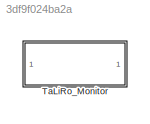
MODEL slx_3df9f024ba2a
KIND library
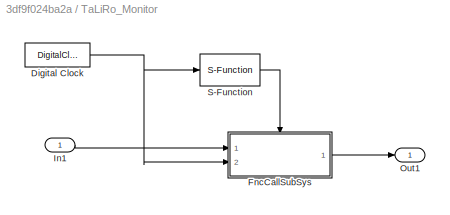
BLOCK [SubSystem] TaLiRo_Monitor
  FunctionWithSeparateData = off
  MaskHideContents = off
  MinAlgLoopOccurrences = off
  Opaque = off
  Ports = [1, 1]
  PropExecContextOutsideSubsystem = off
  RTWSystemCode = Auto
  RequestExecContextInheritance = off
  StopFcn = clear phi_for_sfunction_use_only;\nclear pred_for_sfunction_use_only;
BLOCK [DigitalClock] TaLiRo_Monitor/Digital Clock
  SampleTime = sample
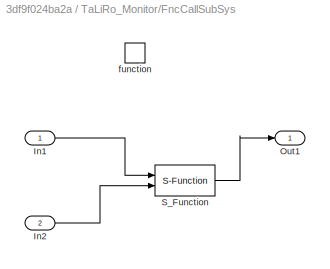
BLOCK [SubSystem] TaLiRo_Monitor/FncCallSubSys
  FunctionWithSeparateData = off
  MaskHideContents = off
  MinAlgLoopOccurrences = off
  Opaque = off
  Ports = [2, 1, 0, 1]
  PropExecContextOutsideSubsystem = off
  RTWSystemCode = Auto
  RequestExecContextInheritance = off
  TreatAsAtomicUnit = on
BLOCK [Inport] TaLiRo_Monitor/FncCallSubSys/In1
  IconDisplay = Port number
BLOCK [Inport] TaLiRo_Monitor/FncCallSubSys/In2
  IconDisplay = Port number
  Port = 2
BLOCK [Outport] TaLiRo_Monitor/FncCallSubSys/Out1
  IconDisplay = Port number
BLOCK [S-Function] TaLiRo_Monitor/FncCallSubSys/S_Function
  EnableBusSupport = off
  FunctionName = on_line
  Parameters = phi_for_sfunction_use_only,pred_for_sfunction_use_only,sample
  Ports = [2, 1]
BLOCK [TriggerPort] TaLiRo_Monitor/FncCallSubSys/function
  Ports = []
  StatesWhenEnabling = held
  TriggerType = function-call
BLOCK [Inport] TaLiRo_Monitor/In1
  IconDisplay = Port number
BLOCK [Outport] TaLiRo_Monitor/Out1
  IconDisplay = Port number
BLOCK [S-Function] TaLiRo_Monitor/S-Function
  EnableBusSupport = off
  FunctionName = fcncall
  Parameters = sample
  Ports = [1, 1]
NET TaLiRo_Monitor/Digital Clock:1 -> TaLiRo_Monitor/FncCallSubSys:2, TaLiRo_Monitor/S-Function:1
LINE TaLiRo_Monitor/FncCallSubSys/In1:1 -> TaLiRo_Monitor/FncCallSubSys/S_Function:1
LINE TaLiRo_Monitor/FncCallSubSys/In2:1 -> TaLiRo_Monitor/FncCallSubSys/S_Function:2
LINE TaLiRo_Monitor/FncCallSubSys/S_Function:1 -> TaLiRo_Monitor/FncCallSubSys/Out1:1
LINE TaLiRo_Monitor/FncCallSubSys:1 -> TaLiRo_Monitor/Out1:1
LINE TaLiRo_Monitor/In1:1 -> TaLiRo_Monitor/FncCallSubSys:1
LINE TaLiRo_Monitor/S-Function:1 -> TaLiRo_Monitor/FncCallSubSys:trigger
note: NET lines group one-source signal fan-out (src -> all destinations, sorted); 1:1 wires keep LINE
